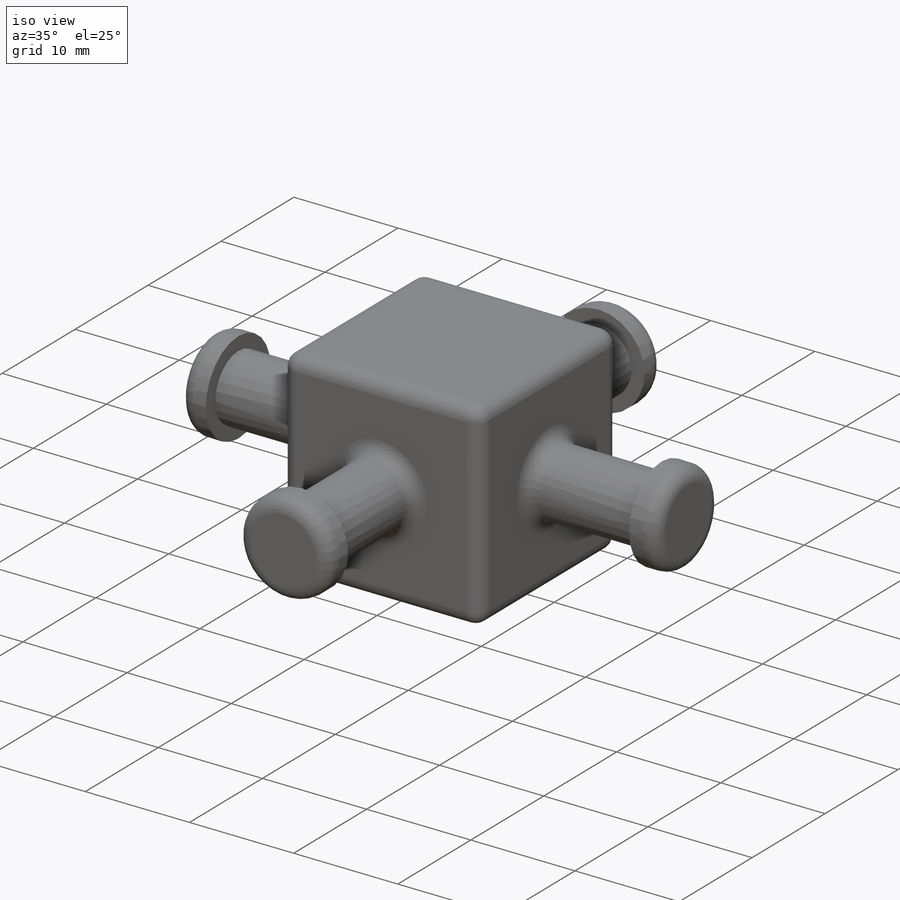
[diagram: iso view]
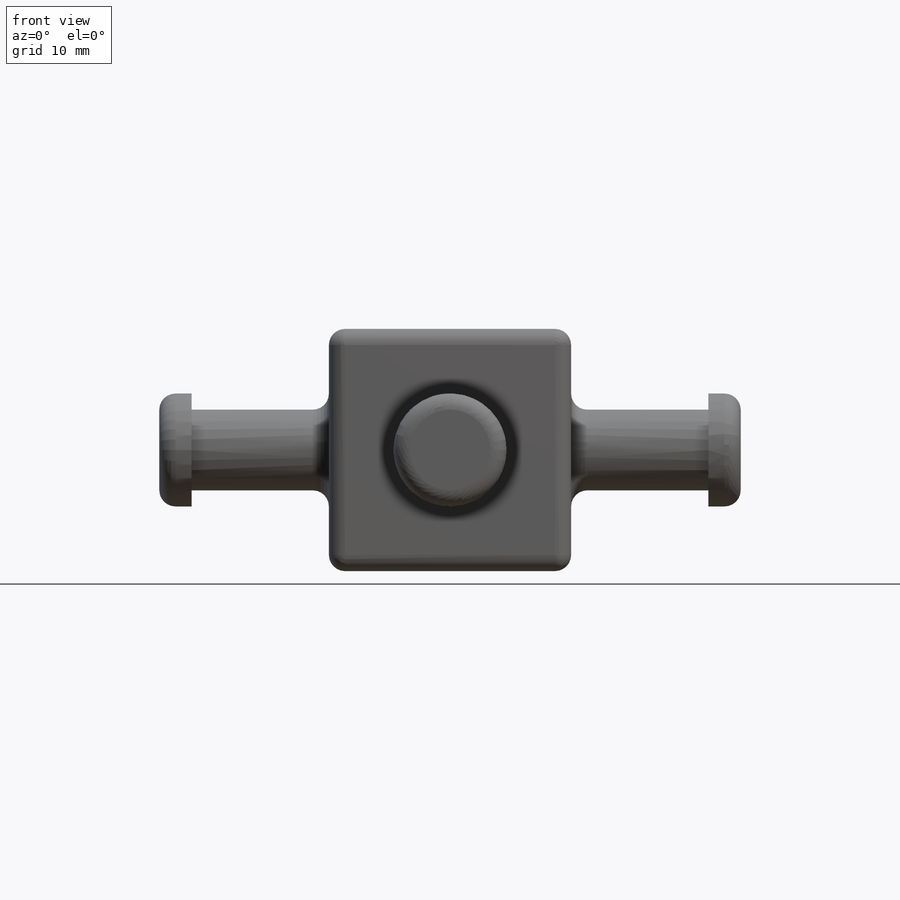
[diagram: front view]
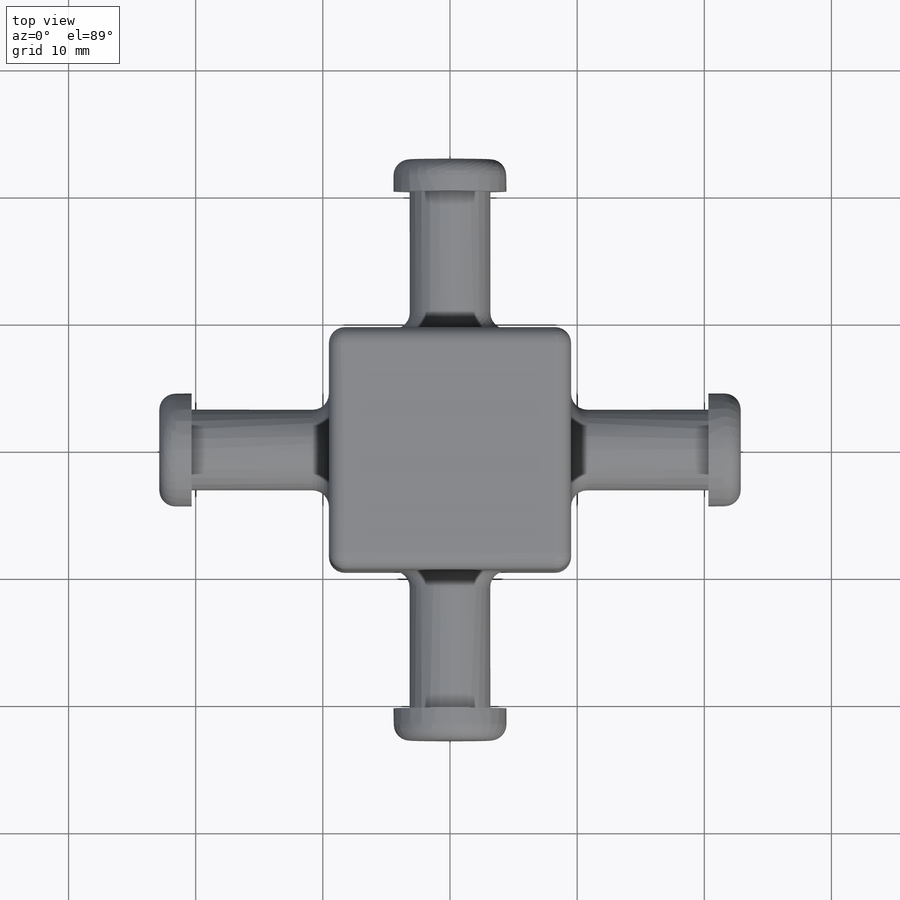
[diagram: top view]
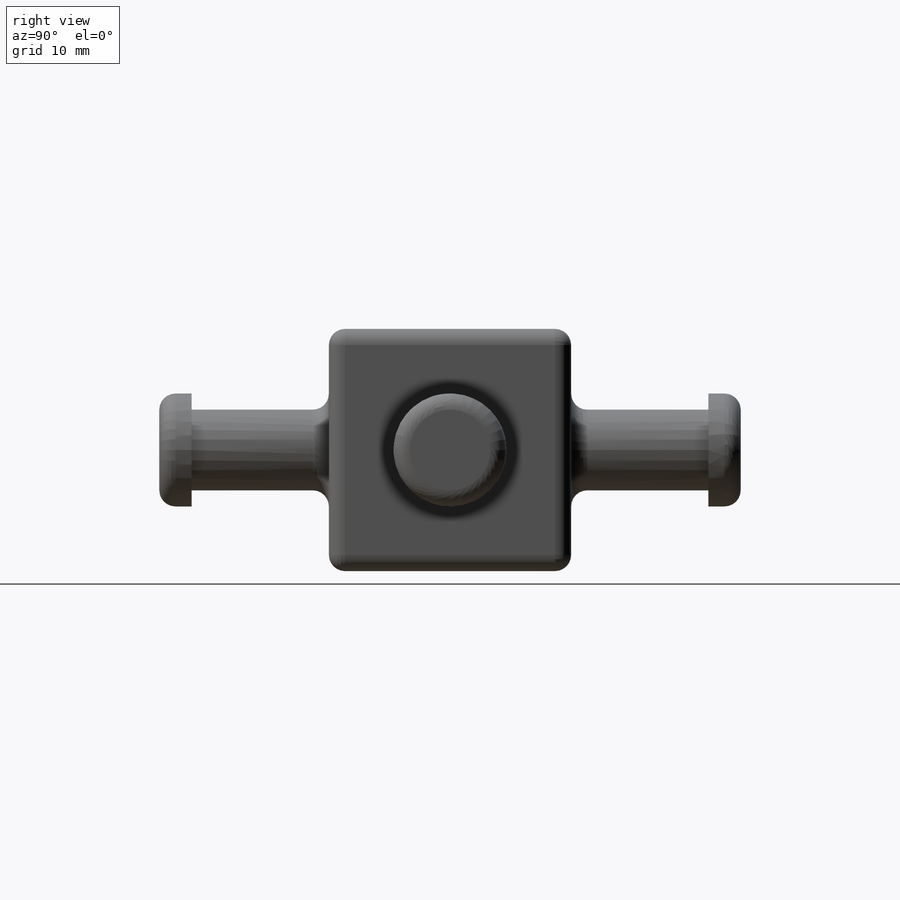
[diagram: right view]
SOLIDWORKS PART (.sldprt)
format: sldprt  version: not decoded by parser v0  size: 329,728 bytes
history: native  units: mm
features: sketch x5, extrude x5, fillet x3, mirror x2, material x1 (+13 scaffold rows collapsed)
feature tree (29):
  scaffold x13  (default folders/planes/origin — collapsed)
  material  "Material <not specified>"
  sketch  "Sketch1"  dims[D1=6.35mm]
  extrude  "Boss-Extrude1"  Depth=40.64mm
  sketch  "Sketch2"  dims[D1=8.89mm]
  extrude  "Boss-Extrude2"  Depth=2.54mm
  fillet  "Fillet1"  Radius=1.27mm
  mirror  "Mirror1"
  sketch  "Sketch3"
  extrude  "Boss-Extrude3"  Depth=40.64mm
  sketch  "Sketch4"  dims[D1=8.89mm]
  extrude  "Boss-Extrude4"  Depth=2.54mm
  fillet  "Fillet2"  Radius=1.27mm
  mirror  "Mirror2"
  sketch  "Sketch5"  dims[D1=15.24mm D2=19.05mm]
  extrude  "Boss-Extrude5"  Depth=19.05mm
  fillet  "Fillet3"  Radius=1.27mm
decode coverage: 12 of 15 modeling features carry decoded parameters
note: suppression state not decoded; provenance and decode notes live in map.json
